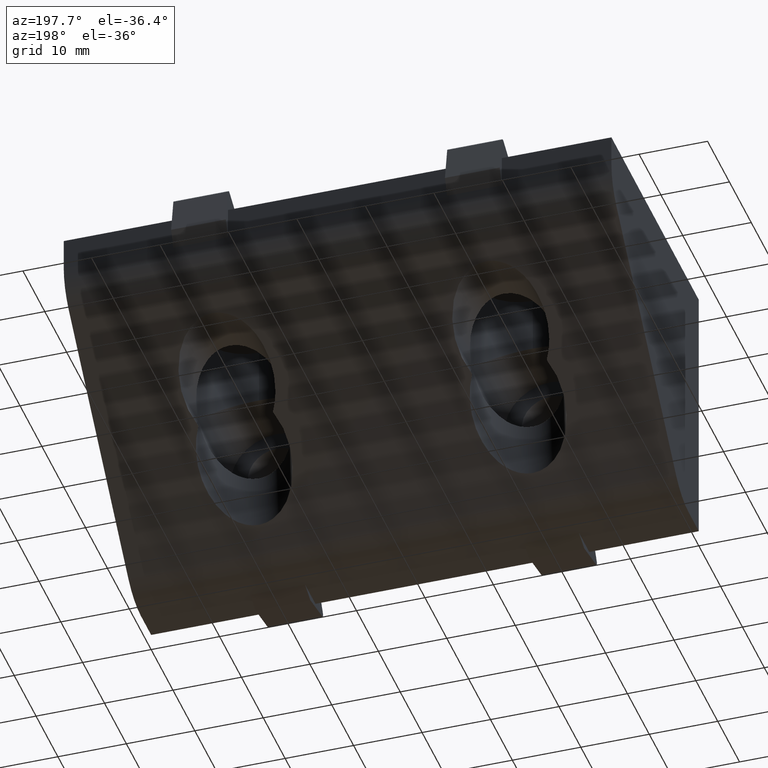
[diagram: clean part render]
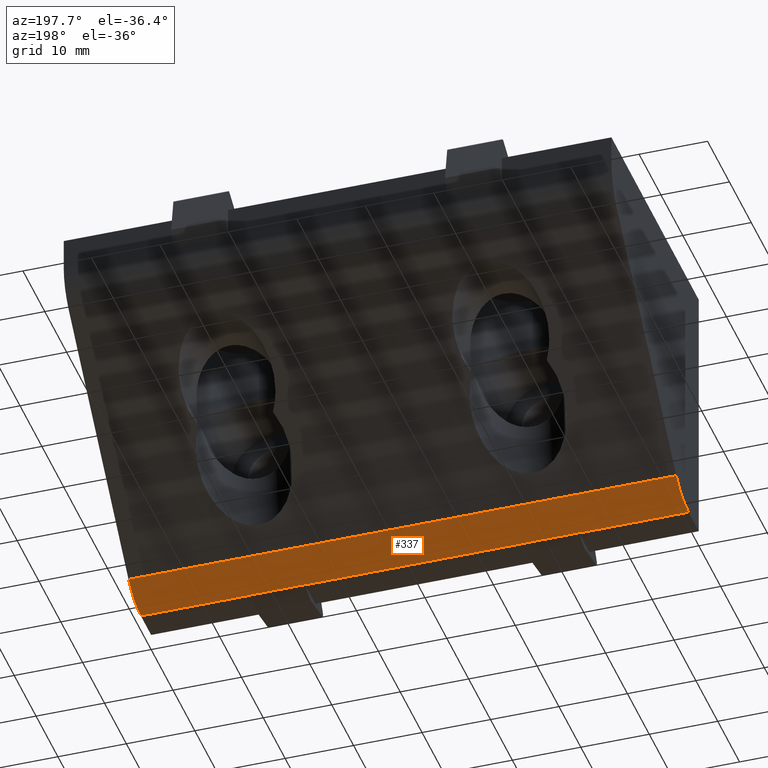
[diagram: same view with one face highlighted and labeled with its STEP entity id]
A machine part, auxiliary view. The second image highlights one B-rep face of the part: STEP entity #337.
In plain terms, the highlighted cylindrical surface (partial cylindrical patch) has radius 8 mm, axis along (1, 0, 0).
Its self-contained STEP definition (entity closure, byte-faithful):
#152=CARTESIAN_POINT('',(23.999997531903240,4.686307275954620,-39.999983489860888));
#153=VERTEX_POINT('',#152);
#160=CARTESIAN_POINT('',(39.999986349841187,4.686307275954620,-39.999983489860888));
#161=VERTEX_POINT('',#160);
#162=CARTESIAN_POINT('',(39.999986349841187,4.686307275954620,-39.999983489860888));
#163=DIRECTION('',(-1.0,0.0,0.0));
#164=VECTOR('',#163,15.999988817937947);
#165=LINE('',#162,#164);
#166=EDGE_CURVE('',#161,#153,#165,.T.);
#183=CARTESIAN_POINT('',(-16.000001217935200,4.686307275954620,-39.999983489860888));
#184=VERTEX_POINT('',#183);
#191=CARTESIAN_POINT('',(15.999991415906983,4.686307275954620,-39.999983489860888));
#192=VERTEX_POINT('',#191);
#193=CARTESIAN_POINT('',(15.999991415906983,4.686307275954620,-39.999983489860888));
#194=DIRECTION('',(-1.0,0.0,0.0));
#195=VECTOR('',#194,31.999992633842183);
#196=LINE('',#193,#195);
#197=EDGE_CURVE('',#192,#184,#196,.T.);
#213=CARTESIAN_POINT('',(-39.999986349841187,4.686307275954620,-39.999983489860888));
#214=VERTEX_POINT('',#213);
#221=CARTESIAN_POINT('',(-23.999998453771390,4.686307275954620,-39.999983489860888));
#222=VERTEX_POINT('',#221);
#223=CARTESIAN_POINT('',(-23.999998453771390,4.686307275954620,-39.999983489860888));
#224=DIRECTION('',(-1.0,0.0,0.0));
#225=VECTOR('',#224,15.999987896069797);
#226=LINE('',#223,#225);
#227=EDGE_CURVE('',#222,#214,#226,.T.);
#239=CARTESIAN_POINT('',(39.999986349841187,4.686307275954619,-32.000007441279585));
#240=DIRECTION('',(1.0,0.0,0.0));
#241=DIRECTION('',(0.0,1.665335E-016,-1.0));
#242=AXIS2_PLACEMENT_3D('',#239,#240,#241);
#243=CYLINDRICAL_SURFACE('',#242,7.999976048581303);
#244=ORIENTED_EDGE('',*,*,#166,.T.);
#245=CARTESIAN_POINT('',(23.999997531903240,4.731559025922480,-39.999855505899276));
#246=VERTEX_POINT('',#245);
#247=CARTESIAN_POINT('',(23.999997531903240,4.686307275954619,-32.000007441279585));
#248=DIRECTION('',(1.0,0.0,0.0));
#249=DIRECTION('',(0.0,0.707106830503990,-0.707106731869102));
#250=AXIS2_PLACEMENT_3D('',#247,#248,#249);
#251=CIRCLE('',#250,7.999976048581303);
#252=EDGE_CURVE('',#153,#246,#251,.T.);
#253=ORIENTED_EDGE('',*,*,#252,.T.);
#254=CARTESIAN_POINT('',(15.999991415906983,4.731559025922480,-39.999855505899276));
#255=VERTEX_POINT('',#254);
#256=CARTESIAN_POINT('',(15.999991415906983,4.731559025922480,-39.999855505899269));
#257=DIRECTION('',(1.0,0.0,0.0));
#258=VECTOR('',#257,8.000006115996257);
#259=LINE('',#256,#258);
#260=EDGE_CURVE('',#255,#246,#259,.T.);
#261=ORIENTED_EDGE('',*,*,#260,.F.);
#262=CARTESIAN_POINT('',(15.999991415906983,4.686307275954619,-32.000007441279585));
#263=DIRECTION('',(1.0,0.0,0.0));
#264=DIRECTION('',(0.0,0.707106830503990,-0.707106731869102));
#265=AXIS2_PLACEMENT_3D('',#262,#263,#264);
#266=CIRCLE('',#265,7.999976048581303);
#267=EDGE_CURVE('',#192,#255,#266,.T.);
#268=ORIENTED_EDGE('',*,*,#267,.F.);
#269=ORIENTED_EDGE('',*,*,#197,.T.);
#270=CARTESIAN_POINT('',(-16.000001217935200,4.731565723274059,-39.999855468012392));
#271=VERTEX_POINT('',#270);
#272=CARTESIAN_POINT('',(-16.000001217935200,4.686307275954619,-32.000007441279585));
#273=DIRECTION('',(1.0,0.0,0.0));
#274=DIRECTION('',(0.0,0.707106830503990,-0.707106731869102));
#275=AXIS2_PLACEMENT_3D('',#272,#273,#274);
#276=CIRCLE('',#275,7.999976048581303);
#277=EDGE_CURVE('',#184,#271,#276,.T.);
#278=ORIENTED_EDGE('',*,*,#277,.T.);
#279=CARTESIAN_POINT('',(-23.999998453771390,4.731565723274059,-39.999855468012392));
#280=VERTEX_POINT('',#279);
#281=CARTESIAN_POINT('',(-23.999998453771390,4.731565723274050,-39.999855468012392));
#282=DIRECTION('',(1.0,0.0,0.0));
#283=VECTOR('',#282,7.999997235836190);
#284=LINE('',#281,#283);
#285=EDGE_CURVE('',#280,#271,#284,.T.);
#286=ORIENTED_EDGE('',*,*,#285,.F.);
#287=CARTESIAN_POINT('',(-23.999998453771390,4.686307275954619,-32.000007441279585));
#288=DIRECTION('',(1.0,0.0,0.0));
#289=DIRECTION('',(0.0,0.707106830503990,-0.707106731869102));
#290=AXIS2_PLACEMENT_3D('',#287,#288,#289);
#291=CIRCLE('',#290,7.999976048581303);
#292=EDGE_CURVE('',#222,#280,#291,.T.);
#293=ORIENTED_EDGE('',*,*,#292,.F.);
#294=ORIENTED_EDGE('',*,*,#227,.T.);
#295=CARTESIAN_POINT('',(-39.999986349841187,10.343144983774774,-37.656844360023001));
#296=VERTEX_POINT('',#295);
#297=CARTESIAN_POINT('',(-39.999986349841187,4.686307275954619,-32.000007441279585));
#298=DIRECTION('',(1.0,0.0,0.0));
#299=DIRECTION('',(0.0,0.707106830503990,-0.707106731869102));
#300=AXIS2_PLACEMENT_3D('',#297,#298,#299);
#301=CIRCLE('',#300,7.999976048581303);
#302=EDGE_CURVE('',#214,#296,#301,.T.);
#303=ORIENTED_EDGE('',*,*,#302,.T.);
#304=CARTESIAN_POINT('',(-23.999998453771390,10.343144983774776,-37.656844360023001));
#305=VERTEX_POINT('',#304);
#306=CARTESIAN_POINT('',(-23.999998453771390,10.343144983774774,-37.656844360023001));
#307=DIRECTION('',(-1.0,0.0,0.0));
#308=VECTOR('',#307,15.999987896069797);
#309=LINE('',#306,#308);
#310=EDGE_CURVE('',#305,#296,#309,.T.);
#311=ORIENTED_EDGE('',*,*,#310,.F.);
#312=CARTESIAN_POINT('',(-16.000001217935200,10.343144983774776,-37.656844360023001));
#313=VERTEX_POINT('',#312);
#314=CARTESIAN_POINT('',(-16.000001217935200,10.343144983774774,-37.656844360023001));
#315=DIRECTION('',(-1.0,0.0,0.0));
#316=VECTOR('',#315,7.999997235836190);
#317=LINE('',#314,#316);
#318=EDGE_CURVE('',#313,#305,#317,.T.);
#319=ORIENTED_EDGE('',*,*,#318,.F.);
#320=CARTESIAN_POINT('',(39.999986349841187,10.343144983774774,-37.656844360023001));
#321=VERTEX_POINT('',#320);
#322=CARTESIAN_POINT('',(39.999986349841187,10.343144983774774,-37.656844360023001));
#323=DIRECTION('',(-1.0,0.0,0.0));
#324=VECTOR('',#323,55.999987567776387);
#325=LINE('',#322,#324);
#326=EDGE_CURVE('',#321,#313,#325,.T.);
#327=ORIENTED_EDGE('',*,*,#326,.F.);
#328=CARTESIAN_POINT('',(39.999986349841187,4.686307275954619,-32.000007441279585));
#329=DIRECTION('',(1.0,0.0,0.0));
#330=DIRECTION('',(0.0,0.707106830503990,-0.707106731869102));
#331=AXIS2_PLACEMENT_3D('',#328,#329,#330);
#332=CIRCLE('',#331,7.999976048581303);
#333=EDGE_CURVE('',#161,#321,#332,.T.);
#334=ORIENTED_EDGE('',*,*,#333,.F.);
#335=EDGE_LOOP('',(#244,#253,#261,#268,#269,#278,#286,#293,#294,#303,#311,#319,#327,#334));
#336=FACE_OUTER_BOUND('',#335,.T.);
#337=ADVANCED_FACE('',(#336),#243,.T.);